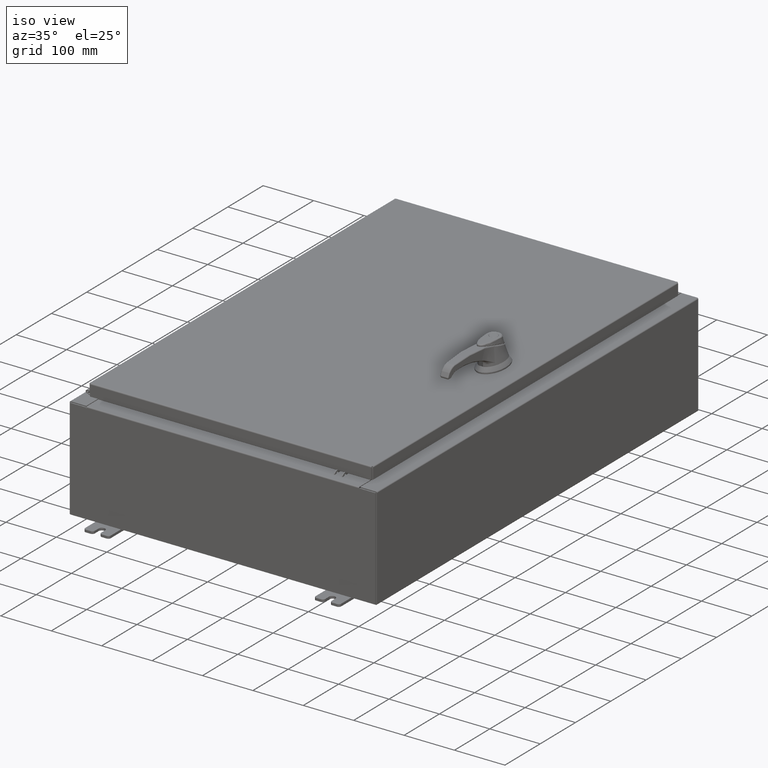
[diagram: clean part render]
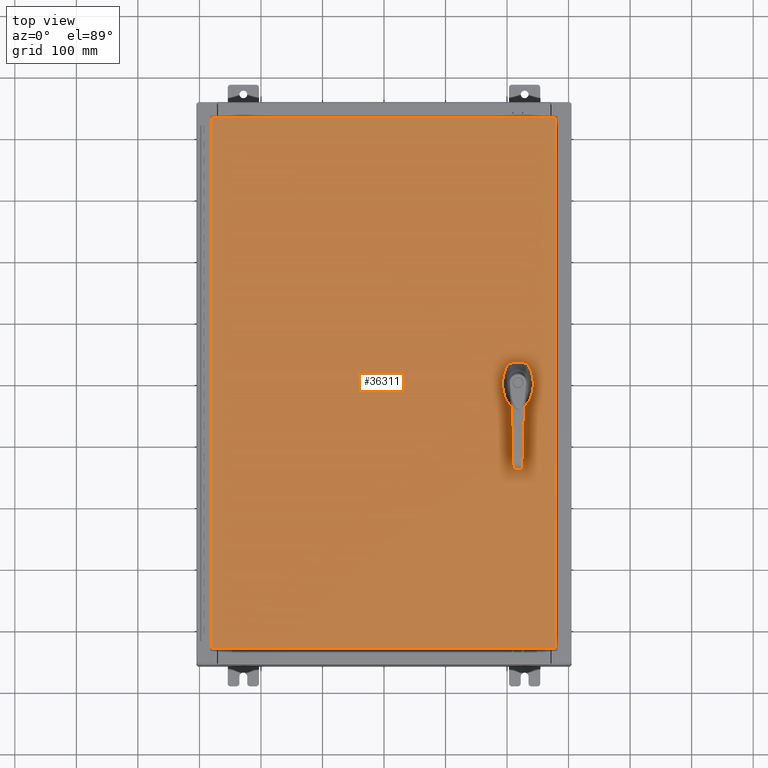
[diagram: tour spotlight — one face highlighted and labeled with its STEP entity id]
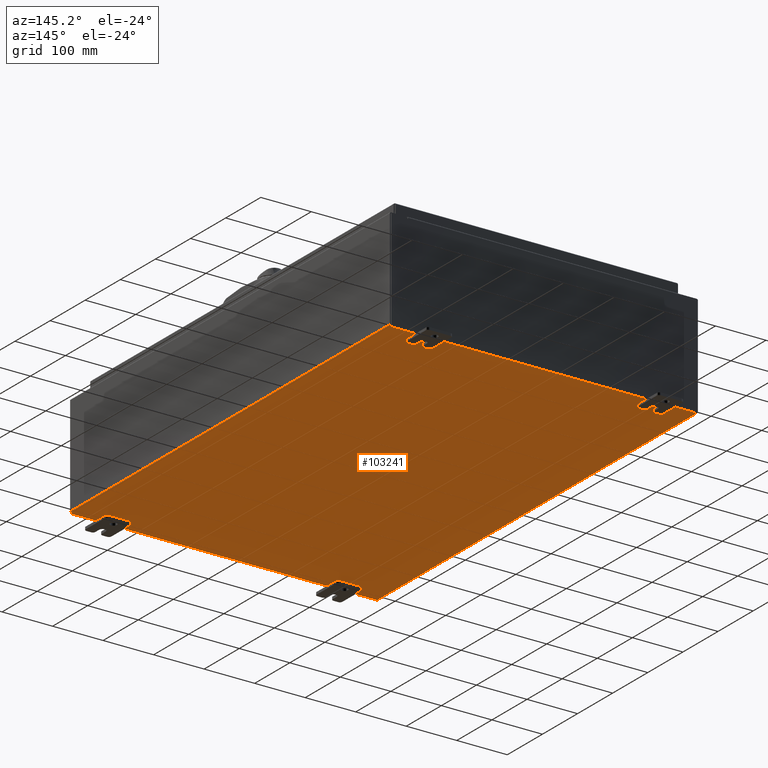
[diagram: tour spotlight — one face highlighted and labeled with its STEP entity id]
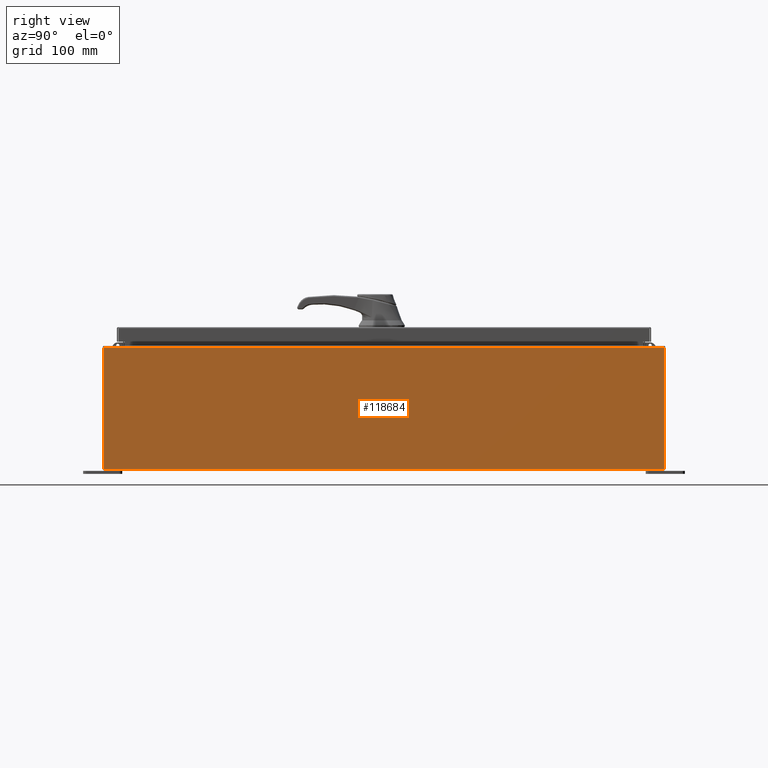
[diagram: tour spotlight — one face highlighted and labeled with its STEP entity id]
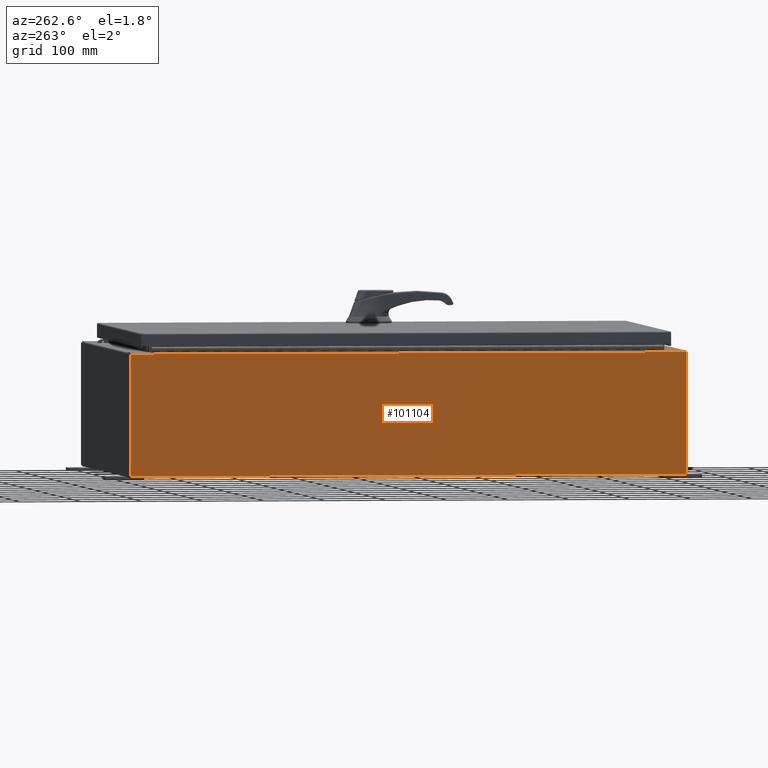
[diagram: tour spotlight — one face highlighted and labeled with its STEP entity id]
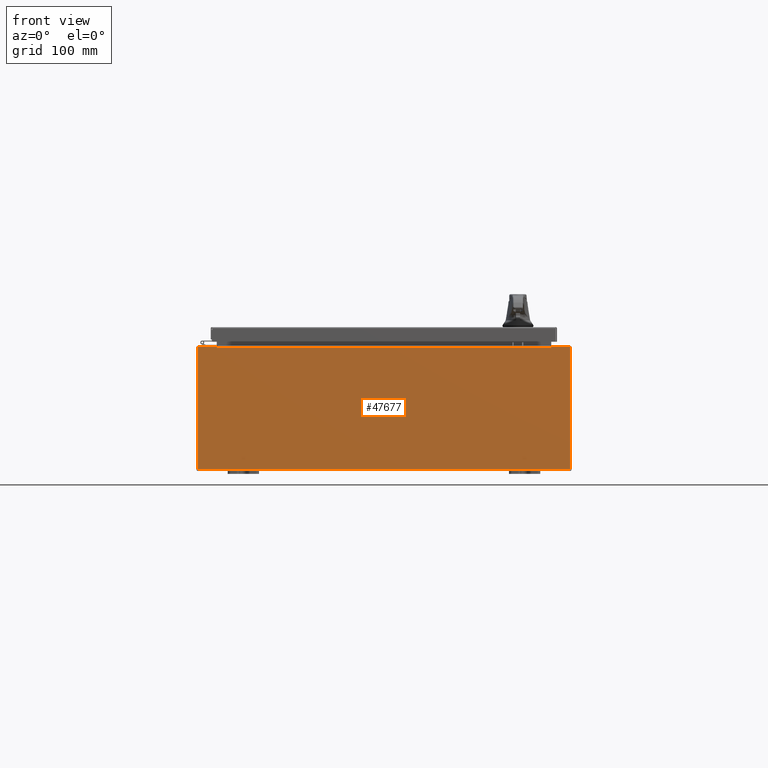
[diagram: tour spotlight — one face highlighted and labeled with its STEP entity id]
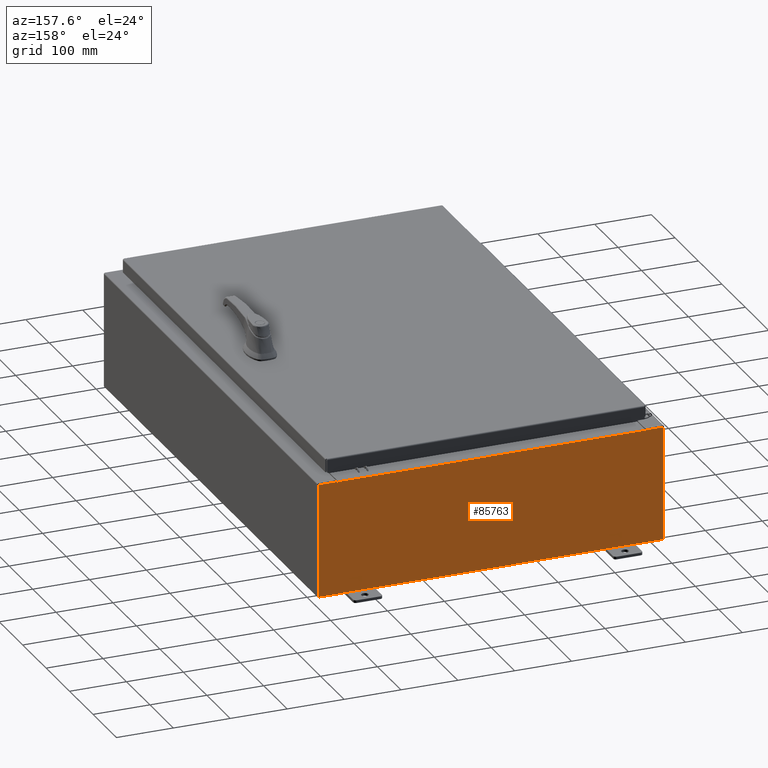
[diagram: tour spotlight — one face highlighted and labeled with its STEP entity id]
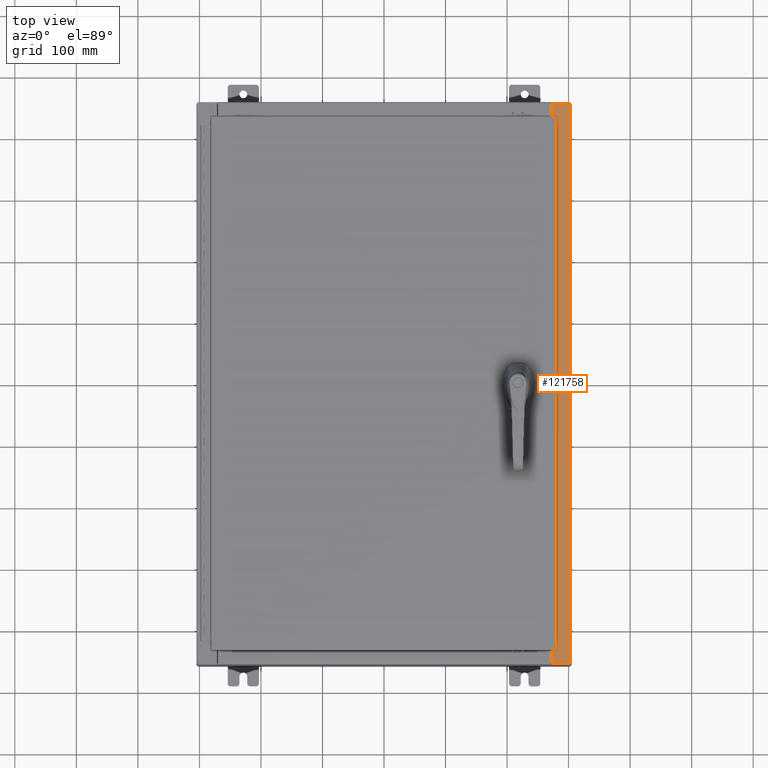
[diagram: tour spotlight — one face highlighted and labeled with its STEP entity id]
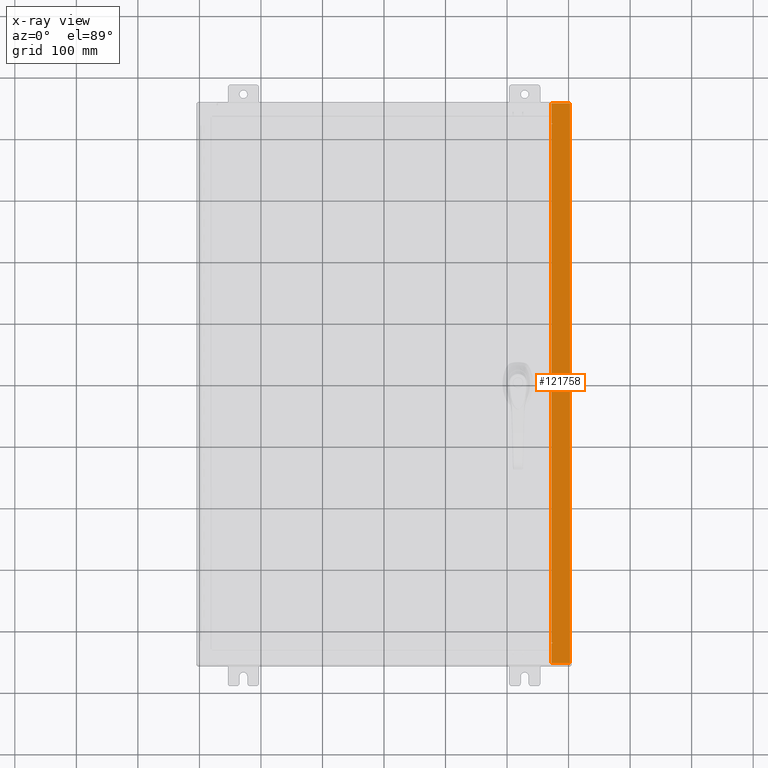
[diagram: x-ray of the same camera — body ghosted, this tour face saturated]
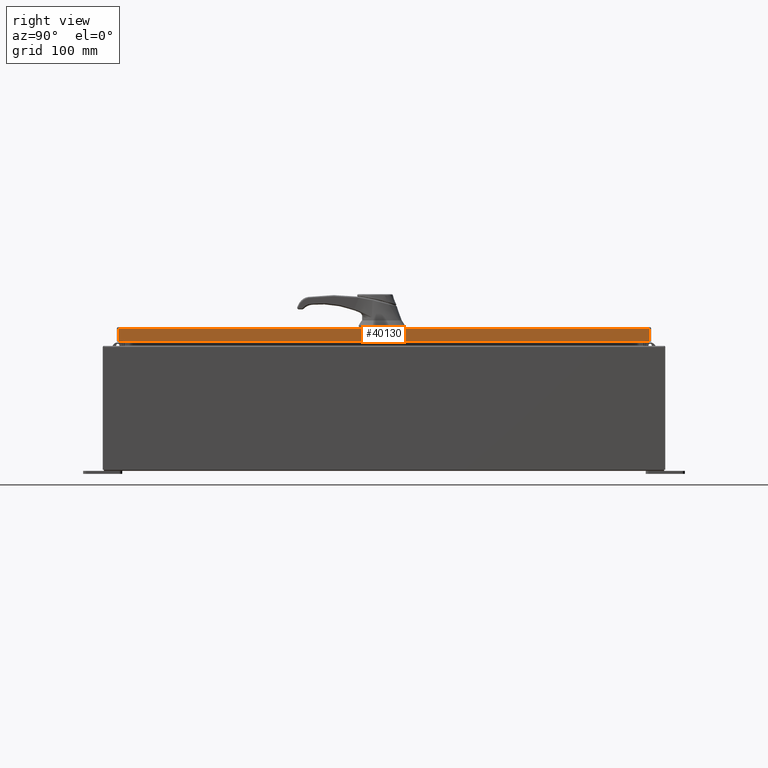
[diagram: tour spotlight — one face highlighted and labeled with its STEP entity id]
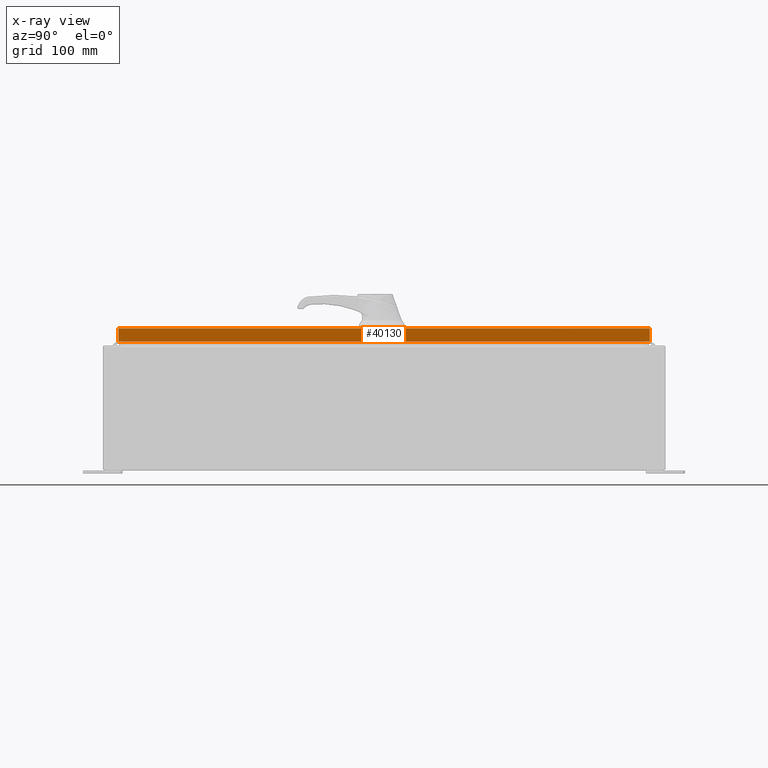
[diagram: x-ray of the same camera — body ghosted, this tour face saturated]
A machine part: a face-by-face anatomy tour. The part has 2856 B-rep faces; the first image is the clean iso view, then the 8 largest visible faces are spotlighted one at a time (largest first), each with its STEP entity span.

Face 1 — top view, entity #36311. In plain terms, the highlighted planar face has unit normal (0, 0, -1).
Definition (entity closure, byte-faithful):
#11 = EDGE_CURVE ( 'NONE', #38123, #56684, #3281, .T. ) ;
#644 = VECTOR ( 'NONE', #3723, 39.37007874015748100 ) ;
#832 = VERTEX_POINT ( 'NONE', #14706 ) ;
#2885 = DIRECTION ( 'NONE',  ( -1.000000000000000000, 0.0000000000000000000, -0.0000000000000000000 ) ) ;
#3281 = LINE ( 'NONE', #20588, #101559 ) ;
#3723 = DIRECTION ( 'NONE',  ( 0.0000000000000000000, -1.000000000000000000, 0.0000000000000000000 ) ) ;
#4145 = VERTEX_POINT ( 'NONE', #58199 ) ;
#4161 = VERTEX_POINT ( 'NONE', #87905 ) ;
#9372 = CIRCLE ( 'NONE', #34213, 0.1715000000000011500 ) ;
#10569 = ORIENTED_EDGE ( 'NONE', *, *, #49971, .F. ) ;
#10911 = VERTEX_POINT ( 'NONE', #81733 ) ;
#11384 = AXIS2_PLACEMENT_3D ( 'NONE', #21597, #88095, #31159 ) ;
#12825 = ORIENTED_EDGE ( 'NONE', *, *, #113157, .T. ) ;
#13340 = ORIENTED_EDGE ( 'NONE', *, *, #25636, .F. ) ;
#13455 = CARTESIAN_POINT ( 'NONE',  ( 8.377772629243686700, -0.4029999999999252000, 0.0000000000000000000 ) ) ;
#14706 = CARTESIAN_POINT ( 'NONE',  ( 8.377772629243686700, 0.4029999999999252000, 0.0000000000000000000 ) ) ;
#16128 = DIRECTION ( 'NONE',  ( -0.0000000000000000000, 0.0000000000000000000, 1.000000000000000000 ) ) ;
#20539 = CARTESIAN_POINT ( 'NONE',  ( 8.980999999999921700, 0.2002273707563080300, 0.0000000000000000000 ) ) ;
#20588 = CARTESIAN_POINT ( 'NONE',  ( 8.980999999999921700, 2.450686610769031800E-014, 0.0000000000000000000 ) ) ;
#21274 = ORIENTED_EDGE ( 'NONE', *, *, #40773, .T. ) ;
#21597 = CARTESIAN_POINT ( 'NONE',  ( 8.577999999999995900, 0.0000000000000000000, 0.0000000000000000000 ) ) ;
#22934 = CARTESIAN_POINT ( 'NONE',  ( 8.175000000000070000, 0.0000000000000000000, 0.0000000000000000000 ) ) ;
#23088 = DIRECTION ( 'NONE',  ( 0.0000000000000000000, -1.000000000000000000, 0.0000000000000000000 ) ) ;
#23479 = DIRECTION ( 'NONE',  ( -0.0000000000000000000, 0.0000000000000000000, 1.000000000000000000 ) ) ;
#25636 = EDGE_CURVE ( 'NONE', #98896, #100542, #79232, .T. ) ;
#26092 = LINE ( 'NONE', #22934, #644 ) ;
#28216 = EDGE_CURVE ( 'NONE', #832, #10911, #122195, .T. ) ;
#29549 = CIRCLE ( 'NONE', #67259, 0.4499999999999156900 ) ;
#29976 = ORIENTED_EDGE ( 'NONE', *, *, #83414, .T. ) ;
#30014 = EDGE_CURVE ( 'NONE', #100542, #56684, #46132, .T. ) ;
#31159 = DIRECTION ( 'NONE',  ( 1.000000000000000000, 0.0000000000000000000, 0.0000000000000000000 ) ) ;
#31253 = CARTESIAN_POINT ( 'NONE',  ( 0.0000000000000000000, 0.0000000000000000000, 0.0000000000000000000 ) ) ;
#31984 = CARTESIAN_POINT ( 'NONE',  ( -10.99030000000000000, -17.00629999999999600, -2.048885995248197400E-016 ) ) ;
#32050 = CARTESIAN_POINT ( 'NONE',  ( 8.577999999999995900, 0.0000000000000000000, 0.0000000000000000000 ) ) ;
#32793 = ORIENTED_EDGE ( 'NONE', *, *, #53768, .T. ) ;
#33978 = ORIENTED_EDGE ( 'NONE', *, *, #28216, .F. ) ;
#34213 = AXIS2_PLACEMENT_3D ( 'NONE', #73037, #16128, #82640 ) ;
#34842 = DIRECTION ( 'NONE',  ( 1.000000000000000000, -0.0000000000000000000, -0.0000000000000000000 ) ) ;
#34973 = DIRECTION ( 'NONE',  ( 2.728745808672812900E-015, -1.000000000000000000, 0.0000000000000000000 ) ) ;
#35073 = CARTESIAN_POINT ( 'NONE',  ( 10.99029999999999800, 17.00630000000000700, -2.048885995248197400E-016 ) ) ;
#36311 = ADVANCED_FACE ( 'NONE', ( #89222, #41632, #63911 ), #97773, .F. ) ;
#37641 = AXIS2_PLACEMENT_3D ( 'NONE', #39824, #106245, #49337 ) ;
#38123 = VERTEX_POINT ( 'NONE', #20539 ) ;
#39824 = CARTESIAN_POINT ( 'NONE',  ( 8.577999999999995900, -1.338000000000000100, 0.0000000000000000000 ) ) ;
#40773 = EDGE_CURVE ( 'NONE', #77423, #91901, #42486, .T. ) ;
#41572 = DIRECTION ( 'NONE',  ( 1.000000000000000000, 0.0000000000000000000, 0.0000000000000000000 ) ) ;
#41632 = FACE_OUTER_BOUND ( 'NONE', #50240, .T. ) ;
#42486 = LINE ( 'NONE', #91789, #90068 ) ;
#44697 = VECTOR ( 'NONE', #115433, 39.37007874015748100 ) ;
#44920 = VECTOR ( 'NONE', #23088, 39.37007874015748100 ) ;
#46132 = CIRCLE ( 'NONE', #111947, 0.4499999999999156900 ) ;
#48523 = AXIS2_PLACEMENT_3D ( 'NONE', #31253, #59853, #2885 ) ;
#48932 = CARTESIAN_POINT ( 'NONE',  ( 10.99029999999999600, -17.00629999999999200, -2.048885995248197400E-016 ) ) ;
#49337 = DIRECTION ( 'NONE',  ( 1.000000000000000000, 0.0000000000000000000, 0.0000000000000000000 ) ) ;
#49971 = EDGE_CURVE ( 'NONE', #10911, #100056, #26092, .T. ) ;
#50240 = EDGE_LOOP ( 'NONE', ( #21274, #29976, #12825, #32793 ) ) ;
#51189 = CARTESIAN_POINT ( 'NONE',  ( 8.577999999999995900, 0.0000000000000000000, 0.0000000000000000000 ) ) ;
#51681 = CARTESIAN_POINT ( 'NONE',  ( 0.0000000000000000000, -0.4029999999999252000, 0.0000000000000000000 ) ) ;
#51878 = LINE ( 'NONE', #81824, #96501 ) ;
#53544 = DIRECTION ( 'NONE',  ( -1.000000000000000000, 0.0000000000000000000, 0.0000000000000000000 ) ) ;
#53768 = EDGE_CURVE ( 'NONE', #106333, #77423, #86511, .T. ) ;
#53950 = VECTOR ( 'NONE', #61600, 39.37007874015748100 ) ;
#54570 = LINE ( 'NONE', #35073, #76862 ) ;
#56684 = VERTEX_POINT ( 'NONE', #92103 ) ;
#56958 = ORIENTED_EDGE ( 'NONE', *, *, #110213, .F. ) ;
#57422 = VERTEX_POINT ( 'NONE', #115596 ) ;
#58199 = CARTESIAN_POINT ( 'NONE',  ( 8.749499999999997600, -1.338000000000000100, 0.0000000000000000000 ) ) ;
#58331 = EDGE_CURVE ( 'NONE', #100056, #98896, #29549, .T. ) ;
#59853 = DIRECTION ( 'NONE',  ( 0.0000000000000000000, 0.0000000000000000000, -1.000000000000000000 ) ) ;
#60198 = LINE ( 'NONE', #48932, #44697 ) ;
#60718 = DIRECTION ( 'NONE',  ( 1.000000000000000000, 0.0000000000000000000, 0.0000000000000000000 ) ) ;
#61600 = DIRECTION ( 'NONE',  ( 1.000000000000000000, 0.0000000000000000000, 0.0000000000000000000 ) ) ;
#63911 = FACE_BOUND ( 'NONE', #75645, .T. ) ;
#67259 = AXIS2_PLACEMENT_3D ( 'NONE', #32050, #98555, #41572 ) ;
#73037 = CARTESIAN_POINT ( 'NONE',  ( 8.577999999999995900, -1.338000000000000100, 0.0000000000000000000 ) ) ;
#73295 = DIRECTION ( 'NONE',  ( -1.000000000000000000, -0.0000000000000000000, -0.0000000000000000000 ) ) ;
#75645 = EDGE_LOOP ( 'NONE', ( #76773, #114468, #13340, #81731, #10569, #33978, #100740, #56958 ) ) ;
#76773 = ORIENTED_EDGE ( 'NONE', *, *, #11, .T. ) ;
#76862 = VECTOR ( 'NONE', #73295, 39.37007874015748100 ) ;
#77423 = VERTEX_POINT ( 'NONE', #31984 ) ;
#79232 = LINE ( 'NONE', #51681, #53950 ) ;
#80012 = CARTESIAN_POINT ( 'NONE',  ( -10.99030000000000500, 17.00630000000000700, -3.483106191921935600E-015 ) ) ;
#80394 = CARTESIAN_POINT ( 'NONE',  ( 8.577999999999995900, 0.0000000000000000000, 0.0000000000000000000 ) ) ;
#81731 = ORIENTED_EDGE ( 'NONE', *, *, #58331, .F. ) ;
#81733 = CARTESIAN_POINT ( 'NONE',  ( 8.175000000000070000, 0.2002273707563079800, 0.0000000000000000000 ) ) ;
#81824 = CARTESIAN_POINT ( 'NONE',  ( 0.0000000000000000000, 0.4029999999999252000, 0.0000000000000000000 ) ) ;
#82640 = DIRECTION ( 'NONE',  ( 1.000000000000000000, 0.0000000000000000000, 0.0000000000000000000 ) ) ;
#83414 = EDGE_CURVE ( 'NONE', #91901, #100530, #60198, .T. ) ;
#83451 = EDGE_CURVE ( 'NONE', #4145, #57422, #108538, .T. ) ;
#85184 = EDGE_LOOP ( 'NONE', ( #113661, #111009 ) ) ;
#86511 = LINE ( 'NONE', #80012, #44920 ) ;
#87905 = CARTESIAN_POINT ( 'NONE',  ( 8.778227370756305000, 0.4029999999999252000, 0.0000000000000000000 ) ) ;
#88065 = CARTESIAN_POINT ( 'NONE',  ( 10.99029999999999600, -17.00629999999999200, -2.048885995248197400E-016 ) ) ;
#88095 = DIRECTION ( 'NONE',  ( -0.0000000000000000000, 0.0000000000000000000, 1.000000000000000000 ) ) ;
#89222 = FACE_BOUND ( 'NONE', #85184, .T. ) ;
#89953 = DIRECTION ( 'NONE',  ( 1.000000000000000000, 0.0000000000000000000, 0.0000000000000000000 ) ) ;
#90068 = VECTOR ( 'NONE', #34842, 39.37007874015748100 ) ;
#91274 = CARTESIAN_POINT ( 'NONE',  ( 10.99029999999999800, 17.00630000000000700, -2.048885995248197400E-016 ) ) ;
#91789 = CARTESIAN_POINT ( 'NONE',  ( -10.99030000000000000, -17.00629999999999600, -2.048885995248197400E-016 ) ) ;
#91901 = VERTEX_POINT ( 'NONE', #88065 ) ;
#92103 = CARTESIAN_POINT ( 'NONE',  ( 8.980999999999921700, -0.2002273707563079800, 0.0000000000000000000 ) ) ;
#92258 = EDGE_CURVE ( 'NONE', #57422, #4145, #9372, .T. ) ;
#96501 = VECTOR ( 'NONE', #53544, 39.37007874015748100 ) ;
#97773 = PLANE ( 'NONE',  #48523 ) ;
#98555 = DIRECTION ( 'NONE',  ( -0.0000000000000000000, 0.0000000000000000000, 1.000000000000000000 ) ) ;
#98896 = VERTEX_POINT ( 'NONE', #13455 ) ;
#100056 = VERTEX_POINT ( 'NONE', #108882 ) ;
#100530 = VERTEX_POINT ( 'NONE', #91274 ) ;
#100542 = VERTEX_POINT ( 'NONE', #119922 ) ;
#100740 = ORIENTED_EDGE ( 'NONE', *, *, #106500, .F. ) ;
#101559 = VECTOR ( 'NONE', #34973, 39.37007874015748100 ) ;
#103662 = AXIS2_PLACEMENT_3D ( 'NONE', #80394, #23479, #89953 ) ;
#104021 = CIRCLE ( 'NONE', #103662, 0.4499999999999156900 ) ;
#106245 = DIRECTION ( 'NONE',  ( -0.0000000000000000000, 0.0000000000000000000, 1.000000000000000000 ) ) ;
#106333 = VERTEX_POINT ( 'NONE', #118383 ) ;
#106500 = EDGE_CURVE ( 'NONE', #4161, #832, #51878, .T. ) ;
#108538 = CIRCLE ( 'NONE', #37641, 0.1715000000000011500 ) ;
#108882 = CARTESIAN_POINT ( 'NONE',  ( 8.175000000000070000, -0.2002273707563079800, 0.0000000000000000000 ) ) ;
#110213 = EDGE_CURVE ( 'NONE', #38123, #4161, #104021, .T. ) ;
#111009 = ORIENTED_EDGE ( 'NONE', *, *, #92258, .F. ) ;
#111947 = AXIS2_PLACEMENT_3D ( 'NONE', #51189, #117667, #60718 ) ;
#113157 = EDGE_CURVE ( 'NONE', #100530, #106333, #54570, .T. ) ;
#113661 = ORIENTED_EDGE ( 'NONE', *, *, #83451, .F. ) ;
#114468 = ORIENTED_EDGE ( 'NONE', *, *, #30014, .F. ) ;
#115433 = DIRECTION ( 'NONE',  ( 0.0000000000000000000, 1.000000000000000000, 0.0000000000000000000 ) ) ;
#115596 = CARTESIAN_POINT ( 'NONE',  ( 8.406499999999994100, -1.338000000000000100, 0.0000000000000000000 ) ) ;
#117667 = DIRECTION ( 'NONE',  ( -0.0000000000000000000, 0.0000000000000000000, 1.000000000000000000 ) ) ;
#118383 = CARTESIAN_POINT ( 'NONE',  ( -10.99030000000000500, 17.00630000000000700, -3.483106191921935600E-015 ) ) ;
#119922 = CARTESIAN_POINT ( 'NONE',  ( 8.778227370756305000, -0.4029999999999252000, 0.0000000000000000000 ) ) ;
#122195 = CIRCLE ( 'NONE', #11384, 0.4499999999999156900 ) ;

Face 2 — auxiliary view, entity #103241. In plain terms, the highlighted planar face has unit normal (0, 0, -1).
Definition (entity closure, byte-faithful):
#5524 = ORIENTED_EDGE ( 'NONE', *, *, #67366, .T. ) ;
#7276 = VECTOR ( 'NONE', #45822, 39.37007874015748100 ) ;
#10265 = LINE ( 'NONE', #112311, #7276 ) ;
#13971 = VERTEX_POINT ( 'NONE', #69997 ) ;
#14480 = EDGE_CURVE ( 'NONE', #65340, #82671, #57308, .T. ) ;
#16283 = DIRECTION ( 'NONE',  ( -1.000000000000000000, 0.0000000000000000000, -0.0000000000000000000 ) ) ;
#17196 = EDGE_CURVE ( 'NONE', #35669, #82671, #85423, .T. ) ;
#19365 = CARTESIAN_POINT ( 'NONE',  ( -11.91230000000000000, 17.92529999999999600, -0.07470000000000000300 ) ) ;
#19558 = CARTESIAN_POINT ( 'NONE',  ( 11.91230000000000000, 17.92529999999999600, -0.07469999999999738000 ) ) ;
#20341 = DIRECTION ( 'NONE',  ( -0.0000000000000000000, 1.000000000000000000, -0.0000000000000000000 ) ) ;
#26567 = EDGE_LOOP ( 'NONE', ( #58448, #75225, #122745, #5524 ) ) ;
#34982 = CARTESIAN_POINT ( 'NONE',  ( 0.0000000000000000000, 0.0000000000000000000, -0.07470000000000000300 ) ) ;
#35669 = VERTEX_POINT ( 'NONE', #60000 ) ;
#45822 = DIRECTION ( 'NONE',  ( -0.0000000000000000000, -1.000000000000000000, -8.208677865577646300E-017 ) ) ;
#54389 = VECTOR ( 'NONE', #104408, 39.37007874015748100 ) ;
#57308 = LINE ( 'NONE', #94879, #54389 ) ;
#58448 = ORIENTED_EDGE ( 'NONE', *, *, #121511, .F. ) ;
#60000 = CARTESIAN_POINT ( 'NONE',  ( -11.91230000000000000, -17.92530000000000400, -0.07469999999999994700 ) ) ;
#64718 = VECTOR ( 'NONE', #87227, 39.37007874015748100 ) ;
#65340 = VERTEX_POINT ( 'NONE', #19558 ) ;
#67366 = EDGE_CURVE ( 'NONE', #65340, #13971, #10265, .T. ) ;
#67646 = CARTESIAN_POINT ( 'NONE',  ( -11.91230000000000000, -17.92530000000000400, -0.07469999999999994700 ) ) ;
#69997 = CARTESIAN_POINT ( 'NONE',  ( 11.91229999999999100, -17.92530000000000400, -0.07470000000000000300 ) ) ;
#73208 = DIRECTION ( 'NONE',  ( 0.0000000000000000000, 0.0000000000000000000, -1.000000000000000000 ) ) ;
#75225 = ORIENTED_EDGE ( 'NONE', *, *, #17196, .T. ) ;
#77647 = CARTESIAN_POINT ( 'NONE',  ( -12.00000000000000200, -17.92530000000000400, -0.07470000000000000300 ) ) ;
#82671 = VERTEX_POINT ( 'NONE', #19365 ) ;
#85423 = LINE ( 'NONE', #67646, #88395 ) ;
#87227 = DIRECTION ( 'NONE',  ( 1.000000000000000000, 0.0000000000000000000, 0.0000000000000000000 ) ) ;
#88395 = VECTOR ( 'NONE', #20341, 39.37007874015748100 ) ;
#90033 = LINE ( 'NONE', #77647, #64718 ) ;
#91928 = PLANE ( 'NONE',  #119164 ) ;
#94879 = CARTESIAN_POINT ( 'NONE',  ( -12.00000000000000200, 17.92529999999999600, -0.07470000000000000300 ) ) ;
#103241 = ADVANCED_FACE ( 'NONE', ( #104170 ), #91928, .T. ) ;
#104170 = FACE_OUTER_BOUND ( 'NONE', #26567, .T. ) ;
#104408 = DIRECTION ( 'NONE',  ( -1.000000000000000000, -0.0000000000000000000, -0.0000000000000000000 ) ) ;
#112311 = CARTESIAN_POINT ( 'NONE',  ( 11.91230000000000000, 17.92529999999999600, -0.07469999999999738000 ) ) ;
#119164 = AXIS2_PLACEMENT_3D ( 'NONE', #34982, #73208, #16283 ) ;
#121511 = EDGE_CURVE ( 'NONE', #35669, #13971, #90033, .T. ) ;
#122745 = ORIENTED_EDGE ( 'NONE', *, *, #14480, .F. ) ;

Face 3 — right view, entity #118684. In plain terms, the highlighted planar face has unit normal (-1, 0, 0).
Definition (entity closure, byte-faithful):
#3920 = LINE ( 'NONE', #100493, #78520 ) ;
#10711 = VERTEX_POINT ( 'NONE', #47412 ) ;
#18377 = DIRECTION ( 'NONE',  ( -1.000000000000000000, 0.0000000000000000000, 3.584876173029202900E-015 ) ) ;
#26428 = DIRECTION ( 'NONE',  ( -2.185366332686126200E-031, -1.000000000000000000, -6.096072018129156600E-017 ) ) ;
#30647 = DIRECTION ( 'NONE',  ( -0.0000000000000000000, -1.000000000000000000, -0.0000000000000000000 ) ) ;
#32822 = ORIENTED_EDGE ( 'NONE', *, *, #86897, .T. ) ;
#33961 = DIRECTION ( 'NONE',  ( 3.584876173029202900E-015, 0.0000000000000000000, 1.000000000000000000 ) ) ;
#34685 = FACE_OUTER_BOUND ( 'NONE', #122193, .T. ) ;
#41187 = AXIS2_PLACEMENT_3D ( 'NONE', #52940, #18377, #84868 ) ;
#42640 = LINE ( 'NONE', #113026, #112533 ) ;
#42860 = LINE ( 'NONE', #55430, #112737 ) ;
#47412 = CARTESIAN_POINT ( 'NONE',  ( 12.00000000000000200, -17.92530000000000400, 0.01299999999999945600 ) ) ;
#51778 = VERTEX_POINT ( 'NONE', #66046 ) ;
#52940 = CARTESIAN_POINT ( 'NONE',  ( 12.00000000000000200, 0.0000000000000000000, -4.327932773236201900E-014 ) ) ;
#54498 = VERTEX_POINT ( 'NONE', #98611 ) ;
#55430 = CARTESIAN_POINT ( 'NONE',  ( 12.00000000000000200, -17.92530000000000400, 0.01299999999999984700 ) ) ;
#66046 = CARTESIAN_POINT ( 'NONE',  ( 12.00000000000003000, 17.92530000000000000, 7.837599999999992100 ) ) ;
#69516 = ORIENTED_EDGE ( 'NONE', *, *, #76729, .T. ) ;
#73958 = EDGE_CURVE ( 'NONE', #105172, #10711, #42860, .T. ) ;
#74036 = ORIENTED_EDGE ( 'NONE', *, *, #123283, .T. ) ;
#76729 = EDGE_CURVE ( 'NONE', #54498, #10711, #42640, .T. ) ;
#78520 = VECTOR ( 'NONE', #33961, 39.37007874015748100 ) ;
#84767 = DIRECTION ( 'NONE',  ( -3.584876173029202900E-015, 0.0000000000000000000, -1.000000000000000000 ) ) ;
#84868 = DIRECTION ( 'NONE',  ( 3.584876173029202900E-015, 0.0000000000000000000, 1.000000000000000000 ) ) ;
#86897 = EDGE_CURVE ( 'NONE', #105172, #51778, #3920, .T. ) ;
#91599 = PLANE ( 'NONE',  #41187 ) ;
#94541 = CARTESIAN_POINT ( 'NONE',  ( 12.00000000000000200, 17.92529999999999600, 0.01300000000000203200 ) ) ;
#97162 = CARTESIAN_POINT ( 'NONE',  ( 12.00000000000003000, 17.92530000000000000, 7.837599999999992100 ) ) ;
#98611 = CARTESIAN_POINT ( 'NONE',  ( 12.00000000000003000, -17.92530000000000000, 7.837599999999998300 ) ) ;
#100493 = CARTESIAN_POINT ( 'NONE',  ( 12.00000000000000200, 17.92529999999999600, -4.327932773236201900E-014 ) ) ;
#101898 = VECTOR ( 'NONE', #30647, 39.37007874015748100 ) ;
#104799 = LINE ( 'NONE', #97162, #101898 ) ;
#105172 = VERTEX_POINT ( 'NONE', #94541 ) ;
#112533 = VECTOR ( 'NONE', #84767, 39.37007874015748100 ) ;
#112737 = VECTOR ( 'NONE', #26428, 39.37007874015748100 ) ;
#113026 = CARTESIAN_POINT ( 'NONE',  ( 12.00000000000000200, -17.92530000000000400, -4.327932773236201900E-014 ) ) ;
#118684 = ADVANCED_FACE ( 'NONE', ( #34685 ), #91599, .F. ) ;
#120211 = ORIENTED_EDGE ( 'NONE', *, *, #73958, .F. ) ;
#122193 = EDGE_LOOP ( 'NONE', ( #74036, #69516, #120211, #32822 ) ) ;
#123283 = EDGE_CURVE ( 'NONE', #51778, #54498, #104799, .T. ) ;

Face 4 — auxiliary view, entity #101104. In plain terms, the highlighted planar face has unit normal (1, 0, 0).
Definition (entity closure, byte-faithful):
#2319 = ORIENTED_EDGE ( 'NONE', *, *, #75981, .T. ) ;
#6587 = DIRECTION ( 'NONE',  ( 1.000000000000000000, 0.0000000000000000000, 3.584876173029202900E-015 ) ) ;
#8389 = LINE ( 'NONE', #70482, #55969 ) ;
#15867 = VERTEX_POINT ( 'NONE', #50253 ) ;
#24661 = EDGE_CURVE ( 'NONE', #87831, #89988, #119510, .T. ) ;
#32718 = DIRECTION ( 'NONE',  ( -0.0000000000000000000, 1.000000000000000000, -0.0000000000000000000 ) ) ;
#43709 = VECTOR ( 'NONE', #44078, 39.37007874015748100 ) ;
#43818 = LINE ( 'NONE', #49697, #91405 ) ;
#44078 = DIRECTION ( 'NONE',  ( 0.0000000000000000000, 1.000000000000000000, 0.0000000000000000000 ) ) ;
#44622 = CARTESIAN_POINT ( 'NONE',  ( -12.00000000000000200, 17.92529999999999600, 0.01299999999999983600 ) ) ;
#47861 = DIRECTION ( 'NONE',  ( 3.584876173029202900E-015, 0.0000000000000000000, -1.000000000000000000 ) ) ;
#49697 = CARTESIAN_POINT ( 'NONE',  ( -12.00000000000000200, -17.92530000000000400, -4.327932773236201900E-014 ) ) ;
#50253 = CARTESIAN_POINT ( 'NONE',  ( -12.00000000000000200, -17.92530000000000400, 0.01299999999999984700 ) ) ;
#50650 = EDGE_CURVE ( 'NONE', #15867, #87831, #43818, .T. ) ;
#51996 = ORIENTED_EDGE ( 'NONE', *, *, #24661, .T. ) ;
#54311 = ORIENTED_EDGE ( 'NONE', *, *, #113517, .F. ) ;
#55969 = VECTOR ( 'NONE', #32718, 39.37007874015748100 ) ;
#56083 = LINE ( 'NONE', #85318, #109635 ) ;
#63532 = CARTESIAN_POINT ( 'NONE',  ( -12.00000000000000200, 0.0000000000000000000, -4.327932773236201900E-014 ) ) ;
#70482 = CARTESIAN_POINT ( 'NONE',  ( -12.00000000000000200, 17.92529999999999600, 0.01299999999999984700 ) ) ;
#73121 = DIRECTION ( 'NONE',  ( 3.584876173029202900E-015, 0.0000000000000000000, -1.000000000000000000 ) ) ;
#73713 = AXIS2_PLACEMENT_3D ( 'NONE', #63532, #6587, #73121 ) ;
#75939 = ORIENTED_EDGE ( 'NONE', *, *, #50650, .T. ) ;
#75981 = EDGE_CURVE ( 'NONE', #89988, #91071, #56083, .T. ) ;
#85318 = CARTESIAN_POINT ( 'NONE',  ( -12.00000000000000200, 17.92529999999999600, -4.327932773236201900E-014 ) ) ;
#86658 = FACE_OUTER_BOUND ( 'NONE', #89051, .T. ) ;
#87831 = VERTEX_POINT ( 'NONE', #111919 ) ;
#88170 = CARTESIAN_POINT ( 'NONE',  ( -12.00000000000003000, 17.92529999999999600, 7.837599999999999200 ) ) ;
#89051 = EDGE_LOOP ( 'NONE', ( #51996, #2319, #54311, #75939 ) ) ;
#89988 = VERTEX_POINT ( 'NONE', #88170 ) ;
#91071 = VERTEX_POINT ( 'NONE', #44622 ) ;
#91405 = VECTOR ( 'NONE', #106599, 39.37007874015748100 ) ;
#101104 = ADVANCED_FACE ( 'NONE', ( #86658 ), #101416, .F. ) ;
#101416 = PLANE ( 'NONE',  #73713 ) ;
#106599 = DIRECTION ( 'NONE',  ( -3.584876173029202900E-015, 0.0000000000000000000, 1.000000000000000000 ) ) ;
#109635 = VECTOR ( 'NONE', #47861, 39.37007874015748100 ) ;
#110548 = CARTESIAN_POINT ( 'NONE',  ( -12.00000000000003000, -17.92530000000000400, 7.837599999999999200 ) ) ;
#111919 = CARTESIAN_POINT ( 'NONE',  ( -12.00000000000003000, -17.92530000000000400, 7.837599999999999200 ) ) ;
#113517 = EDGE_CURVE ( 'NONE', #15867, #91071, #8389, .T. ) ;
#119510 = LINE ( 'NONE', #110548, #43709 ) ;

Face 5 — front view, entity #47677. In plain terms, the highlighted planar face has unit normal (-0, 1, -0).
Definition (entity closure, byte-faithful):
#331 = DIRECTION ( 'NONE',  ( 1.000000000000000000, 0.0000000000000000000, 0.0000000000000000000 ) ) ;
#409 = ORIENTED_EDGE ( 'NONE', *, *, #71818, .F. ) ;
#911 = EDGE_CURVE ( 'NONE', #13879, #21802, #41899, .T. ) ;
#1077 = DIRECTION ( 'NONE',  ( 0.0000000000000000000, 0.0000000000000000000, -1.000000000000000000 ) ) ;
#1929 = ORIENTED_EDGE ( 'NONE', *, *, #44945, .F. ) ;
#4255 = LINE ( 'NONE', #114311, #99537 ) ;
#4499 = DIRECTION ( 'NONE',  ( 0.0000000000000000000, 0.0000000000000000000, -1.000000000000000000 ) ) ;
#8066 = VERTEX_POINT ( 'NONE', #67496 ) ;
#9309 = VERTEX_POINT ( 'NONE', #76175 ) ;
#10297 = DIRECTION ( 'NONE',  ( 1.000000000000000000, 0.0000000000000000000, 0.0000000000000000000 ) ) ;
#13462 = DIRECTION ( 'NONE',  ( 0.0000000000000000000, 0.0000000000000000000, 1.000000000000000000 ) ) ;
#13879 = VERTEX_POINT ( 'NONE', #65898 ) ;
#14120 = CARTESIAN_POINT ( 'NONE',  ( 11.92530000000000000, 0.0000000000000000000, 3.925299999999999600 ) ) ;
#16380 = CARTESIAN_POINT ( 'NONE',  ( 11.92530000000000000, 0.0000000000000000000, 3.925299999999999600 ) ) ;
#18033 = CIRCLE ( 'NONE', #46187, 0.01867499999999949400 ) ;
#18531 = CARTESIAN_POINT ( 'NONE',  ( 10.65587500000000200, 0.0000000000000000000, 3.874949999999999700 ) ) ;
#20310 = CARTESIAN_POINT ( 'NONE',  ( -10.63720000000000400, -0.0000000000000000000, 0.0000000000000000000 ) ) ;
#21732 = CARTESIAN_POINT ( 'NONE',  ( -10.65587500000000200, 0.0000000000000000000, 3.874949999999999700 ) ) ;
#21802 = VERTEX_POINT ( 'NONE', #115096 ) ;
#22885 = EDGE_LOOP ( 'NONE', ( #75872, #55404, #72824, #117114, #1929, #67897, #409, #110332, #90213, #116075, #39693, #26876 ) ) ;
#22975 = VECTOR ( 'NONE', #10297, 39.37007874015748100 ) ;
#24706 = CARTESIAN_POINT ( 'NONE',  ( 0.0000000000000000000, 0.0000000000000000000, 0.0000000000000000000 ) ) ;
#25572 = EDGE_CURVE ( 'NONE', #55880, #47183, #59854, .T. ) ;
#26876 = ORIENTED_EDGE ( 'NONE', *, *, #107810, .T. ) ;
#28074 = LINE ( 'NONE', #14120, #50315 ) ;
#28103 = DIRECTION ( 'NONE',  ( 0.0000000000000000000, 0.0000000000000000000, -1.000000000000000000 ) ) ;
#31295 = DIRECTION ( 'NONE',  ( 0.0000000000000000000, 0.0000000000000000000, -1.000000000000000000 ) ) ;
#32195 = CARTESIAN_POINT ( 'NONE',  ( -10.67455000000000200, -0.0000000000000000000, 0.0000000000000000000 ) ) ;
#34241 = DIRECTION ( 'NONE',  ( 0.0000000000000000000, -0.0000000000000000000, -1.000000000000000000 ) ) ;
#34641 = VECTOR ( 'NONE', #13462, 39.37007874015748100 ) ;
#35644 = AXIS2_PLACEMENT_3D ( 'NONE', #24706, #91172, #34241 ) ;
#35716 = VECTOR ( 'NONE', #44089, 39.37007874015748100 ) ;
#38454 = CARTESIAN_POINT ( 'NONE',  ( -10.63720000000000400, 1.024442997624098700E-016, 3.912299999999999700 ) ) ;
#38601 = CARTESIAN_POINT ( 'NONE',  ( -11.92530000000000000, 0.0000000000000000000, 3.925299999999999600 ) ) ;
#39188 = CARTESIAN_POINT ( 'NONE',  ( -10.67455000000000200, 0.0000000000000000000, 3.874949999999999700 ) ) ;
#39564 = VERTEX_POINT ( 'NONE', #38454 ) ;
#39693 = ORIENTED_EDGE ( 'NONE', *, *, #60406, .T. ) ;
#41899 = LINE ( 'NONE', #78575, #120707 ) ;
#44089 = DIRECTION ( 'NONE',  ( -4.340572780400004900E-014, 0.0000000000000000000, -1.000000000000000000 ) ) ;
#44945 = EDGE_CURVE ( 'NONE', #89161, #96696, #98465, .T. ) ;
#46187 = AXIS2_PLACEMENT_3D ( 'NONE', #21732, #88237, #31295 ) ;
#46737 = LINE ( 'NONE', #103051, #122546 ) ;
#46848 = EDGE_CURVE ( 'NONE', #39564, #8066, #108539, .T. ) ;
#46899 = DIRECTION ( 'NONE',  ( 0.0000000000000000000, 0.0000000000000000000, 1.000000000000000000 ) ) ;
#47183 = VERTEX_POINT ( 'NONE', #93764 ) ;
#47677 = ADVANCED_FACE ( 'NONE', ( #59495 ), #81628, .F. ) ;
#47836 = VECTOR ( 'NONE', #87654, 39.37007874015748100 ) ;
#50315 = VECTOR ( 'NONE', #4499, 39.37007874015748100 ) ;
#50817 = LINE ( 'NONE', #78063, #47836 ) ;
#55404 = ORIENTED_EDGE ( 'NONE', *, *, #65039, .F. ) ;
#55880 = VERTEX_POINT ( 'NONE', #39188 ) ;
#59495 = FACE_OUTER_BOUND ( 'NONE', #22885, .T. ) ;
#59854 = LINE ( 'NONE', #32195, #34641 ) ;
#60406 = EDGE_CURVE ( 'NONE', #21802, #76861, #46737, .T. ) ;
#60908 = LINE ( 'NONE', #91461, #35716 ) ;
#65039 = EDGE_CURVE ( 'NONE', #8066, #55880, #18033, .T. ) ;
#65898 = CARTESIAN_POINT ( 'NONE',  ( 11.92530000000000000, 0.0000000000000000000, -3.925299999999999600 ) ) ;
#67496 = CARTESIAN_POINT ( 'NONE',  ( -10.63720000000000400, -0.0000000000000000000, 3.874949999999999700 ) ) ;
#67800 = EDGE_CURVE ( 'NONE', #110487, #13879, #28074, .T. ) ;
#67897 = ORIENTED_EDGE ( 'NONE', *, *, #87171, .F. ) ;
#71818 = EDGE_CURVE ( 'NONE', #9309, #104821, #60908, .T. ) ;
#72114 = CARTESIAN_POINT ( 'NONE',  ( 10.67455000000000200, 0.0000000000000000000, 3.874949999999999700 ) ) ;
#72824 = ORIENTED_EDGE ( 'NONE', *, *, #46848, .F. ) ;
#72886 = EDGE_CURVE ( 'NONE', #9309, #110487, #4255, .T. ) ;
#73942 = CARTESIAN_POINT ( 'NONE',  ( 10.63720000000000400, 0.0000000000000000000, 3.912299999999999700 ) ) ;
#75872 = ORIENTED_EDGE ( 'NONE', *, *, #25572, .F. ) ;
#76108 = VECTOR ( 'NONE', #46899, 39.37007874015748100 ) ;
#76175 = CARTESIAN_POINT ( 'NONE',  ( 10.67455000000000200, 0.0000000000000000000, 3.925299999999999600 ) ) ;
#76805 = CARTESIAN_POINT ( 'NONE',  ( -10.63720000000000400, 1.024442997624098700E-016, 3.912299999999999700 ) ) ;
#76861 = VERTEX_POINT ( 'NONE', #38601 ) ;
#78063 = CARTESIAN_POINT ( 'NONE',  ( -11.92530000000000000, 0.0000000000000000000, 3.925299999999999600 ) ) ;
#78575 = CARTESIAN_POINT ( 'NONE',  ( -11.92530000000000000, 0.0000000000000000000, -3.925299999999999600 ) ) ;
#79161 = EDGE_CURVE ( 'NONE', #39564, #96696, #121090, .T. ) ;
#81628 = PLANE ( 'NONE',  #35644 ) ;
#83010 = CIRCLE ( 'NONE', #118246, 0.01867499999999949400 ) ;
#85024 = DIRECTION ( 'NONE',  ( -0.0000000000000000000, 1.000000000000000000, -0.0000000000000000000 ) ) ;
#87171 = EDGE_CURVE ( 'NONE', #104821, #89161, #83010, .T. ) ;
#87654 = DIRECTION ( 'NONE',  ( 1.000000000000000000, 0.0000000000000000000, 0.0000000000000000000 ) ) ;
#88237 = DIRECTION ( 'NONE',  ( -0.0000000000000000000, 1.000000000000000000, -0.0000000000000000000 ) ) ;
#89161 = VERTEX_POINT ( 'NONE', #110271 ) ;
#90213 = ORIENTED_EDGE ( 'NONE', *, *, #67800, .T. ) ;
#91172 = DIRECTION ( 'NONE',  ( 0.0000000000000000000, -1.000000000000000000, 0.0000000000000000000 ) ) ;
#91461 = CARTESIAN_POINT ( 'NONE',  ( 10.67454999999983300, -0.0000000000000000000, -4.633366117301815000E-013 ) ) ;
#93091 = DIRECTION ( 'NONE',  ( -0.0000000000000000000, -0.0000000000000000000, 1.000000000000000000 ) ) ;
#93764 = CARTESIAN_POINT ( 'NONE',  ( -10.67455000000000200, 0.0000000000000000000, 3.925299999999999600 ) ) ;
#96696 = VERTEX_POINT ( 'NONE', #73942 ) ;
#96766 = CARTESIAN_POINT ( 'NONE',  ( 10.63720000000000400, 0.0000000000000000000, 0.0000000000000000000 ) ) ;
#98465 = LINE ( 'NONE', #96766, #76108 ) ;
#99537 = VECTOR ( 'NONE', #331, 39.37007874015748100 ) ;
#100208 = DIRECTION ( 'NONE',  ( -1.000000000000000000, -0.0000000000000000000, -0.0000000000000000000 ) ) ;
#103051 = CARTESIAN_POINT ( 'NONE',  ( -11.92530000000000000, 0.0000000000000000000, 3.925299999999999600 ) ) ;
#104821 = VERTEX_POINT ( 'NONE', #72114 ) ;
#107810 = EDGE_CURVE ( 'NONE', #76861, #47183, #50817, .T. ) ;
#108539 = LINE ( 'NONE', #20310, #111555 ) ;
#110271 = CARTESIAN_POINT ( 'NONE',  ( 10.63720000000000400, 0.0000000000000000000, 3.874949999999999700 ) ) ;
#110332 = ORIENTED_EDGE ( 'NONE', *, *, #72886, .T. ) ;
#110487 = VERTEX_POINT ( 'NONE', #16380 ) ;
#111555 = VECTOR ( 'NONE', #1077, 39.37007874015748100 ) ;
#114311 = CARTESIAN_POINT ( 'NONE',  ( -11.92530000000000000, 0.0000000000000000000, 3.925299999999999600 ) ) ;
#115096 = CARTESIAN_POINT ( 'NONE',  ( -11.92530000000000000, 0.0000000000000000000, -3.925299999999999600 ) ) ;
#116075 = ORIENTED_EDGE ( 'NONE', *, *, #911, .T. ) ;
#117114 = ORIENTED_EDGE ( 'NONE', *, *, #79161, .T. ) ;
#118246 = AXIS2_PLACEMENT_3D ( 'NONE', #18531, #85024, #28103 ) ;
#120707 = VECTOR ( 'NONE', #100208, 39.37007874015748100 ) ;
#121090 = LINE ( 'NONE', #76805, #22975 ) ;
#122546 = VECTOR ( 'NONE', #93091, 39.37007874015748100 ) ;

Face 6 — auxiliary view, entity #85763. In plain terms, the highlighted planar face has unit normal (0, -1, 0).
Definition (entity closure, byte-faithful):
#1282 = DIRECTION ( 'NONE',  ( -0.0000000000000000000, -0.0000000000000000000, 1.000000000000000000 ) ) ;
#2526 = VECTOR ( 'NONE', #1282, 39.37007874015748100 ) ;
#4824 = DIRECTION ( 'NONE',  ( 0.0000000000000000000, 0.0000000000000000000, 1.000000000000000000 ) ) ;
#7113 = CARTESIAN_POINT ( 'NONE',  ( 10.63720000000000400, 0.0000000000000000000, 3.874949999999999700 ) ) ;
#12083 = EDGE_CURVE ( 'NONE', #111299, #50084, #103753, .T. ) ;
#13650 = CARTESIAN_POINT ( 'NONE',  ( 10.65587500000000200, 0.0000000000000000000, 3.874949999999999700 ) ) ;
#14440 = CARTESIAN_POINT ( 'NONE',  ( 10.63720000000000400, 0.0000000000000000000, 0.0000000000000000000 ) ) ;
#14592 = CARTESIAN_POINT ( 'NONE',  ( -11.92530000000000000, 0.0000000000000000000, 3.925299999999999600 ) ) ;
#14664 = ORIENTED_EDGE ( 'NONE', *, *, #33928, .T. ) ;
#16552 = VECTOR ( 'NONE', #32565, 39.37007874015748100 ) ;
#18808 = LINE ( 'NONE', #38021, #91677 ) ;
#19350 = VERTEX_POINT ( 'NONE', #22261 ) ;
#19373 = ORIENTED_EDGE ( 'NONE', *, *, #12083, .T. ) ;
#20114 = CARTESIAN_POINT ( 'NONE',  ( -10.63720000000000400, -0.0000000000000000000, 0.0000000000000000000 ) ) ;
#20187 = VERTEX_POINT ( 'NONE', #91902 ) ;
#21994 = FACE_OUTER_BOUND ( 'NONE', #64948, .T. ) ;
#22261 = CARTESIAN_POINT ( 'NONE',  ( 11.92530000000000000, 0.0000000000000000000, 3.925299999999999600 ) ) ;
#23212 = DIRECTION ( 'NONE',  ( 0.0000000000000000000, 0.0000000000000000000, -1.000000000000000000 ) ) ;
#26165 = ORIENTED_EDGE ( 'NONE', *, *, #112798, .T. ) ;
#27475 = EDGE_CURVE ( 'NONE', #20187, #116455, #114660, .T. ) ;
#30069 = CARTESIAN_POINT ( 'NONE',  ( 10.67454999999983300, -0.0000000000000000000, -4.633366117301815000E-013 ) ) ;
#32414 = ORIENTED_EDGE ( 'NONE', *, *, #103562, .F. ) ;
#32565 = DIRECTION ( 'NONE',  ( 0.0000000000000000000, 0.0000000000000000000, 1.000000000000000000 ) ) ;
#33692 = VERTEX_POINT ( 'NONE', #90594 ) ;
#33928 = EDGE_CURVE ( 'NONE', #54090, #111299, #63376, .T. ) ;
#34648 = CARTESIAN_POINT ( 'NONE',  ( -10.63720000000000400, 1.024442997624098700E-016, 3.912299999999999700 ) ) ;
#38021 = CARTESIAN_POINT ( 'NONE',  ( -11.92530000000000000, 0.0000000000000000000, 3.925299999999999600 ) ) ;
#38138 = DIRECTION ( 'NONE',  ( 0.0000000000000000000, -1.000000000000000000, 0.0000000000000000000 ) ) ;
#41897 = CARTESIAN_POINT ( 'NONE',  ( 11.92530000000000000, 0.0000000000000000000, 3.925299999999999600 ) ) ;
#42729 = ORIENTED_EDGE ( 'NONE', *, *, #86361, .F. ) ;
#46781 = CARTESIAN_POINT ( 'NONE',  ( -10.67455000000000200, 0.0000000000000000000, 3.925299999999999600 ) ) ;
#47152 = VECTOR ( 'NONE', #89694, 39.37007874015748100 ) ;
#47730 = EDGE_CURVE ( 'NONE', #110870, #109420, #107085, .T. ) ;
#48171 = DIRECTION ( 'NONE',  ( -0.0000000000000000000, 1.000000000000000000, -0.0000000000000000000 ) ) ;
#50084 = VERTEX_POINT ( 'NONE', #14592 ) ;
#51027 = EDGE_CURVE ( 'NONE', #66697, #33692, #115101, .T. ) ;
#53331 = ORIENTED_EDGE ( 'NONE', *, *, #47730, .T. ) ;
#53858 = CARTESIAN_POINT ( 'NONE',  ( 10.67455000000000200, 0.0000000000000000000, 3.925299999999999600 ) ) ;
#54090 = VERTEX_POINT ( 'NONE', #122324 ) ;
#54828 = CARTESIAN_POINT ( 'NONE',  ( -11.92530000000000000, 0.0000000000000000000, -3.925299999999999600 ) ) ;
#54829 = ORIENTED_EDGE ( 'NONE', *, *, #97295, .T. ) ;
#57610 = CARTESIAN_POINT ( 'NONE',  ( -11.92530000000000000, 0.0000000000000000000, 3.925299999999999600 ) ) ;
#58007 = DIRECTION ( 'NONE',  ( 1.000000000000000000, 0.0000000000000000000, 0.0000000000000000000 ) ) ;
#59002 = VECTOR ( 'NONE', #86601, 39.37007874015748100 ) ;
#61551 = AXIS2_PLACEMENT_3D ( 'NONE', #13650, #80139, #23212 ) ;
#63376 = LINE ( 'NONE', #54828, #111005 ) ;
#64308 = EDGE_CURVE ( 'NONE', #66697, #19350, #71664, .T. ) ;
#64948 = EDGE_LOOP ( 'NONE', ( #96134, #32414, #42729, #53331, #89320, #112615, #116865, #68622, #26165, #14664, #19373, #54829 ) ) ;
#65681 = VECTOR ( 'NONE', #58007, 39.37007874015748100 ) ;
#65698 = VERTEX_POINT ( 'NONE', #113757 ) ;
#65810 = AXIS2_PLACEMENT_3D ( 'NONE', #105109, #48171, #114692 ) ;
#66358 = CARTESIAN_POINT ( 'NONE',  ( 0.0000000000000000000, 0.0000000000000000000, 0.0000000000000000000 ) ) ;
#66697 = VERTEX_POINT ( 'NONE', #53858 ) ;
#68622 = ORIENTED_EDGE ( 'NONE', *, *, #64308, .T. ) ;
#71483 = CARTESIAN_POINT ( 'NONE',  ( -10.63720000000000400, 1.024442997624098700E-016, 3.912299999999999700 ) ) ;
#71664 = LINE ( 'NONE', #57610, #65681 ) ;
#74435 = AXIS2_PLACEMENT_3D ( 'NONE', #66358, #38138, #104596 ) ;
#75952 = PLANE ( 'NONE',  #74435 ) ;
#78627 = LINE ( 'NONE', #14440, #123210 ) ;
#80139 = DIRECTION ( 'NONE',  ( -0.0000000000000000000, 1.000000000000000000, -0.0000000000000000000 ) ) ;
#83136 = DIRECTION ( 'NONE',  ( -1.000000000000000000, -0.0000000000000000000, -0.0000000000000000000 ) ) ;
#83372 = CIRCLE ( 'NONE', #65810, 0.01867499999999949400 ) ;
#84407 = LINE ( 'NONE', #20114, #59002 ) ;
#85763 = ADVANCED_FACE ( 'NONE', ( #21994 ), #75952, .F. ) ;
#86361 = EDGE_CURVE ( 'NONE', #110870, #65698, #84407, .T. ) ;
#86601 = DIRECTION ( 'NONE',  ( 0.0000000000000000000, 0.0000000000000000000, -1.000000000000000000 ) ) ;
#87000 = DIRECTION ( 'NONE',  ( -4.340572780400004900E-014, 0.0000000000000000000, -1.000000000000000000 ) ) ;
#87670 = CARTESIAN_POINT ( 'NONE',  ( 10.63720000000000400, 0.0000000000000000000, 3.912299999999999700 ) ) ;
#89320 = ORIENTED_EDGE ( 'NONE', *, *, #111148, .F. ) ;
#89694 = DIRECTION ( 'NONE',  ( 0.0000000000000000000, 0.0000000000000000000, -1.000000000000000000 ) ) ;
#89843 = VECTOR ( 'NONE', #87000, 39.37007874015748100 ) ;
#90594 = CARTESIAN_POINT ( 'NONE',  ( 10.67455000000000200, 0.0000000000000000000, 3.874949999999999700 ) ) ;
#91604 = DIRECTION ( 'NONE',  ( 1.000000000000000000, 0.0000000000000000000, 0.0000000000000000000 ) ) ;
#91677 = VECTOR ( 'NONE', #104479, 39.37007874015748100 ) ;
#91902 = CARTESIAN_POINT ( 'NONE',  ( -10.67455000000000200, 0.0000000000000000000, 3.874949999999999700 ) ) ;
#92137 = CARTESIAN_POINT ( 'NONE',  ( -11.92530000000000000, 0.0000000000000000000, -3.925299999999999600 ) ) ;
#96134 = ORIENTED_EDGE ( 'NONE', *, *, #27475, .F. ) ;
#97295 = EDGE_CURVE ( 'NONE', #50084, #116455, #18808, .T. ) ;
#97761 = LINE ( 'NONE', #41897, #47152 ) ;
#99080 = CARTESIAN_POINT ( 'NONE',  ( -10.67455000000000200, -0.0000000000000000000, 0.0000000000000000000 ) ) ;
#103562 = EDGE_CURVE ( 'NONE', #65698, #20187, #83372, .T. ) ;
#103753 = LINE ( 'NONE', #115237, #2526 ) ;
#104152 = VECTOR ( 'NONE', #91604, 39.37007874015748100 ) ;
#104479 = DIRECTION ( 'NONE',  ( 1.000000000000000000, 0.0000000000000000000, 0.0000000000000000000 ) ) ;
#104596 = DIRECTION ( 'NONE',  ( 0.0000000000000000000, -0.0000000000000000000, -1.000000000000000000 ) ) ;
#105109 = CARTESIAN_POINT ( 'NONE',  ( -10.65587500000000200, 0.0000000000000000000, 3.874949999999999700 ) ) ;
#105700 = VERTEX_POINT ( 'NONE', #7113 ) ;
#107085 = LINE ( 'NONE', #34648, #104152 ) ;
#109420 = VERTEX_POINT ( 'NONE', #87670 ) ;
#110870 = VERTEX_POINT ( 'NONE', #71483 ) ;
#111005 = VECTOR ( 'NONE', #83136, 39.37007874015748100 ) ;
#111148 = EDGE_CURVE ( 'NONE', #105700, #109420, #78627, .T. ) ;
#111299 = VERTEX_POINT ( 'NONE', #92137 ) ;
#112615 = ORIENTED_EDGE ( 'NONE', *, *, #112780, .F. ) ;
#112780 = EDGE_CURVE ( 'NONE', #33692, #105700, #122987, .T. ) ;
#112798 = EDGE_CURVE ( 'NONE', #19350, #54090, #97761, .T. ) ;
#113757 = CARTESIAN_POINT ( 'NONE',  ( -10.63720000000000400, -0.0000000000000000000, 3.874949999999999700 ) ) ;
#114660 = LINE ( 'NONE', #99080, #16552 ) ;
#114692 = DIRECTION ( 'NONE',  ( 0.0000000000000000000, 0.0000000000000000000, -1.000000000000000000 ) ) ;
#115101 = LINE ( 'NONE', #30069, #89843 ) ;
#115237 = CARTESIAN_POINT ( 'NONE',  ( -11.92530000000000000, 0.0000000000000000000, 3.925299999999999600 ) ) ;
#116455 = VERTEX_POINT ( 'NONE', #46781 ) ;
#116865 = ORIENTED_EDGE ( 'NONE', *, *, #51027, .F. ) ;
#122324 = CARTESIAN_POINT ( 'NONE',  ( 11.92530000000000000, 0.0000000000000000000, -3.925299999999999600 ) ) ;
#122987 = CIRCLE ( 'NONE', #61551, 0.01867499999999949400 ) ;
#123210 = VECTOR ( 'NONE', #4824, 39.37007874015748100 ) ;

Face 7 — top view, entity #121758. An x-ray twin of the same camera follows (body ghosted, this face saturated) — the face is partly hidden behind the body. In plain terms, the highlighted planar face has unit normal (-0, 0, -1).
Definition (entity closure, byte-faithful):
#4592 = EDGE_CURVE ( 'NONE', #46488, #13945, #81774, .T. ) ;
#5930 = CARTESIAN_POINT ( 'NONE',  ( 4.972393517341145600E-014, 17.92529999999999600, 7.925300000000073700 ) ) ;
#7720 = CIRCLE ( 'NONE', #77135, 0.01867499999999949400 ) ;
#7791 = CARTESIAN_POINT ( 'NONE',  ( 10.75005000000003000, -16.61242500000000200, 7.925300000000010700 ) ) ;
#7800 = CARTESIAN_POINT ( 'NONE',  ( 10.71270000000003000, -16.59375000000000000, 7.925300000000010700 ) ) ;
#8895 = ORIENTED_EDGE ( 'NONE', *, *, #61923, .T. ) ;
#9082 = DIRECTION ( 'NONE',  ( 1.000000000000000000, 0.0000000000000000000, 0.0000000000000000000 ) ) ;
#9828 = LINE ( 'NONE', #16913, #107948 ) ;
#9889 = CARTESIAN_POINT ( 'NONE',  ( 10.69970000000003000, -2.307817491507028800E-030, 7.925300000000007100 ) ) ;
#11435 = DIRECTION ( 'NONE',  ( -1.000000000000000000, 0.0000000000000000000, 0.0000000000000000000 ) ) ;
#11523 = VERTEX_POINT ( 'NONE', #7800 ) ;
#11718 = LINE ( 'NONE', #44997, #106832 ) ;
#11855 = VECTOR ( 'NONE', #26987, 39.37007874015748100 ) ;
#13945 = VERTEX_POINT ( 'NONE', #22251 ) ;
#14435 = PLANE ( 'NONE',  #88352 ) ;
#14595 = CARTESIAN_POINT ( 'NONE',  ( 10.75005000000003000, -16.63110000000000000, 7.925300000000007100 ) ) ;
#15009 = ORIENTED_EDGE ( 'NONE', *, *, #105778, .F. ) ;
#15119 = CIRCLE ( 'NONE', #34514, 0.01867499999999949400 ) ;
#16468 = CARTESIAN_POINT ( 'NONE',  ( 10.75005000000003000, -16.59375000000000000, 7.925300000000007100 ) ) ;
#16913 = CARTESIAN_POINT ( 'NONE',  ( 10.71270000000003000, -16.59375000000000000, 7.925300000000010700 ) ) ;
#17395 = DIRECTION ( 'NONE',  ( 1.000000000000000000, 0.0000000000000000000, 0.0000000000000000000 ) ) ;
#17785 = VECTOR ( 'NONE', #102724, 39.37007874015748100 ) ;
#22251 = CARTESIAN_POINT ( 'NONE',  ( 11.91230000000002900, -17.92530000000000000, 7.925300000000000000 ) ) ;
#23998 = DIRECTION ( 'NONE',  ( -6.241167087353086200E-015, 0.0000000000000000000, -1.000000000000000000 ) ) ;
#26256 = VECTOR ( 'NONE', #72440, 39.37007874015748100 ) ;
#26987 = DIRECTION ( 'NONE',  ( -0.0000000000000000000, -1.000000000000000000, -0.0000000000000000000 ) ) ;
#28543 = EDGE_CURVE ( 'NONE', #36439, #45380, #15119, .T. ) ;
#28969 = VERTEX_POINT ( 'NONE', #70024 ) ;
#29487 = DIRECTION ( 'NONE',  ( 1.000000000000000000, -1.783190596386596200E-015, -6.241167087353087800E-015 ) ) ;
#30623 = ORIENTED_EDGE ( 'NONE', *, *, #36872, .T. ) ;
#31798 = VECTOR ( 'NONE', #11435, 39.37007874015748100 ) ;
#32589 = DIRECTION ( 'NONE',  ( 6.241167087353086200E-015, 0.0000000000000000000, 1.000000000000000000 ) ) ;
#34514 = AXIS2_PLACEMENT_3D ( 'NONE', #7791, #74324, #17395 ) ;
#36439 = VERTEX_POINT ( 'NONE', #14595 ) ;
#36607 = VERTEX_POINT ( 'NONE', #83181 ) ;
#36872 = EDGE_CURVE ( 'NONE', #36607, #13945, #123294, .T. ) ;
#39107 = LINE ( 'NONE', #9889, #111992 ) ;
#39542 = ORIENTED_EDGE ( 'NONE', *, *, #100983, .F. ) ;
#43064 = ORIENTED_EDGE ( 'NONE', *, *, #4592, .F. ) ;
#44997 = CARTESIAN_POINT ( 'NONE',  ( 10.69970000000003000, -2.307817491507028800E-030, 7.925300000000007100 ) ) ;
#45380 = VERTEX_POINT ( 'NONE', #16468 ) ;
#46488 = VERTEX_POINT ( 'NONE', #98532 ) ;
#47456 = VECTOR ( 'NONE', #29487, 39.37007874015748100 ) ;
#54536 = DIRECTION ( 'NONE',  ( -2.156899250920150100E-031, -1.000000000000000000, 1.346156861557936900E-045 ) ) ;
#54708 = DIRECTION ( 'NONE',  ( -0.0000000000000000000, 1.000000000000000000, -0.0000000000000000000 ) ) ;
#57531 = CARTESIAN_POINT ( 'NONE',  ( 10.75005000000003000, 16.59375000000000000, 7.925300000000007100 ) ) ;
#58040 = DIRECTION ( 'NONE',  ( -2.156899250920150100E-031, -1.000000000000000000, 1.346156861557936900E-045 ) ) ;
#58736 = LINE ( 'NONE', #86782, #109373 ) ;
#59851 = ORIENTED_EDGE ( 'NONE', *, *, #89129, .T. ) ;
#60529 = CARTESIAN_POINT ( 'NONE',  ( 10.69970000000003000, -16.63110000000000400, 7.925300000000007100 ) ) ;
#60626 = ORIENTED_EDGE ( 'NONE', *, *, #62771, .F. ) ;
#61923 = EDGE_CURVE ( 'NONE', #86825, #36607, #39107, .T. ) ;
#62771 = EDGE_CURVE ( 'NONE', #108068, #28969, #7720, .T. ) ;
#62966 = LINE ( 'NONE', #76291, #31798 ) ;
#65569 = VERTEX_POINT ( 'NONE', #93021 ) ;
#69067 = CARTESIAN_POINT ( 'NONE',  ( 10.69970000000003000, 17.92530000000000000, 7.925300000000007100 ) ) ;
#70024 = CARTESIAN_POINT ( 'NONE',  ( 10.75005000000003000, 16.63110000000000000, 7.925300000000007100 ) ) ;
#70142 = ORIENTED_EDGE ( 'NONE', *, *, #28543, .F. ) ;
#70293 = VECTOR ( 'NONE', #91007, 39.37007874015748100 ) ;
#71164 = EDGE_CURVE ( 'NONE', #106916, #108068, #58736, .T. ) ;
#71345 = CARTESIAN_POINT ( 'NONE',  ( 4.972393517341145600E-014, 0.0000000000000000000, 7.925300000000073700 ) ) ;
#72440 = DIRECTION ( 'NONE',  ( -1.000000000000000000, 0.0000000000000000000, 6.241167087353087800E-015 ) ) ;
#73566 = EDGE_LOOP ( 'NONE', ( #39542, #8895, #30623, #43064, #59851, #84610, #15009, #60626, #78160, #83781, #81083, #70142 ) ) ;
#74324 = DIRECTION ( 'NONE',  ( 6.241167087353086200E-015, 0.0000000000000000000, 1.000000000000000000 ) ) ;
#75136 = FACE_OUTER_BOUND ( 'NONE', #73566, .T. ) ;
#76291 = CARTESIAN_POINT ( 'NONE',  ( 10.75005000000003000, -16.59375000000000000, 7.925300000000010700 ) ) ;
#77135 = AXIS2_PLACEMENT_3D ( 'NONE', #89490, #32589, #99100 ) ;
#77214 = EDGE_CURVE ( 'NONE', #11523, #106916, #9828, .T. ) ;
#78160 = ORIENTED_EDGE ( 'NONE', *, *, #71164, .F. ) ;
#79821 = EDGE_CURVE ( 'NONE', #45380, #11523, #62966, .T. ) ;
#81043 = CARTESIAN_POINT ( 'NONE',  ( 10.69970000000003000, -16.63110000000000400, 7.925300000000008900 ) ) ;
#81083 = ORIENTED_EDGE ( 'NONE', *, *, #79821, .F. ) ;
#81774 = LINE ( 'NONE', #83913, #11855 ) ;
#83181 = CARTESIAN_POINT ( 'NONE',  ( 10.69970000000003000, -17.92530000000000000, 7.925300000000007100 ) ) ;
#83781 = ORIENTED_EDGE ( 'NONE', *, *, #77214, .F. ) ;
#83913 = CARTESIAN_POINT ( 'NONE',  ( 11.91230000000002900, -17.92530000000000000, 7.925300000000000000 ) ) ;
#84610 = ORIENTED_EDGE ( 'NONE', *, *, #84749, .T. ) ;
#84749 = EDGE_CURVE ( 'NONE', #115543, #65569, #11718, .T. ) ;
#86403 = CARTESIAN_POINT ( 'NONE',  ( 1.775970877600283600E-014, -17.92529999999998200, 7.925300000000073700 ) ) ;
#86782 = CARTESIAN_POINT ( 'NONE',  ( 10.71270000000003000, 16.59375000000000000, 7.925300000000010700 ) ) ;
#86825 = VERTEX_POINT ( 'NONE', #60529 ) ;
#88352 = AXIS2_PLACEMENT_3D ( 'NONE', #71345, #23998, #90476 ) ;
#89129 = EDGE_CURVE ( 'NONE', #46488, #115543, #107964, .T. ) ;
#89490 = CARTESIAN_POINT ( 'NONE',  ( 10.75005000000003000, 16.61242500000000200, 7.925300000000010700 ) ) ;
#90476 = DIRECTION ( 'NONE',  ( -1.000000000000000000, 0.0000000000000000000, 6.241167087353086200E-015 ) ) ;
#91007 = DIRECTION ( 'NONE',  ( 1.000000000000000000, 4.340572780400098900E-014, 4.340572780400098900E-014 ) ) ;
#93021 = CARTESIAN_POINT ( 'NONE',  ( 10.69970000000003000, 16.63110000000000000, 7.925300000000007100 ) ) ;
#98532 = CARTESIAN_POINT ( 'NONE',  ( 11.91230000000002900, 17.92530000000000000, 7.925300000000000000 ) ) ;
#99100 = DIRECTION ( 'NONE',  ( 1.000000000000000000, 0.0000000000000000000, 0.0000000000000000000 ) ) ;
#100983 = EDGE_CURVE ( 'NONE', #86825, #36439, #120867, .T. ) ;
#102452 = CARTESIAN_POINT ( 'NONE',  ( 10.71270000000003000, 16.59375000000000000, 7.925300000000010700 ) ) ;
#102724 = DIRECTION ( 'NONE',  ( -1.000000000000000000, 4.340572780400098900E-014, -4.340572780400098900E-014 ) ) ;
#105778 = EDGE_CURVE ( 'NONE', #28969, #65569, #118862, .T. ) ;
#106832 = VECTOR ( 'NONE', #54536, 39.37007874015748100 ) ;
#106916 = VERTEX_POINT ( 'NONE', #102452 ) ;
#107948 = VECTOR ( 'NONE', #54708, 39.37007874015748100 ) ;
#107964 = LINE ( 'NONE', #5930, #26256 ) ;
#108068 = VERTEX_POINT ( 'NONE', #57531 ) ;
#109373 = VECTOR ( 'NONE', #9082, 39.37007874015748100 ) ;
#111992 = VECTOR ( 'NONE', #58040, 39.37007874015748100 ) ;
#112280 = CARTESIAN_POINT ( 'NONE',  ( 10.75005000000003000, 16.63110000000000000, 7.925300000000010700 ) ) ;
#115543 = VERTEX_POINT ( 'NONE', #69067 ) ;
#118862 = LINE ( 'NONE', #112280, #17785 ) ;
#120867 = LINE ( 'NONE', #81043, #70293 ) ;
#121758 = ADVANCED_FACE ( 'NONE', ( #75136 ), #14435, .F. ) ;
#123294 = LINE ( 'NONE', #86403, #47456 ) ;

Face 8 — right view, entity #40130. An x-ray twin of the same camera follows (body ghosted, this face saturated) — the face is partly hidden behind the body. In plain terms, the highlighted planar face has unit normal (1, 0, 0).
Definition (entity closure, byte-faithful):
#1747 = CARTESIAN_POINT ( 'NONE',  ( 11.07799999999999600, -17.00515786437626500, -0.07469999999999980800 ) ) ;
#7102 = VERTEX_POINT ( 'NONE', #64345 ) ;
#10769 = VECTOR ( 'NONE', #38359, 39.37007874015748100 ) ;
#15267 = EDGE_CURVE ( 'NONE', #90112, #49886, #55927, .T. ) ;
#16574 = CARTESIAN_POINT ( 'NONE',  ( 11.07799999999999600, 17.00515786437627600, 1.470613442758536900E-013 ) ) ;
#18844 = ORIENTED_EDGE ( 'NONE', *, *, #52971, .T. ) ;
#18850 = CARTESIAN_POINT ( 'NONE',  ( 11.07799999999999600, 0.0000000000000000000, -0.08770000000000008300 ) ) ;
#19454 = VECTOR ( 'NONE', #39689, 39.37007874015748100 ) ;
#20107 = LINE ( 'NONE', #16574, #92988 ) ;
#22689 = DIRECTION ( 'NONE',  ( 0.0000000000000000000, -1.000000000000000000, 0.0000000000000000000 ) ) ;
#23085 = EDGE_CURVE ( 'NONE', #49886, #7102, #69968, .T. ) ;
#27805 = DIRECTION ( 'NONE',  ( 2.532419924601866100E-015, 0.0000000000000000000, -1.000000000000000000 ) ) ;
#38359 = DIRECTION ( 'NONE',  ( 0.0000000000000000000, -1.000000000000000000, 0.0000000000000000000 ) ) ;
#39689 = DIRECTION ( 'NONE',  ( -2.532419924601866100E-015, -6.982962677686265900E-015, 1.000000000000000000 ) ) ;
#40130 = ADVANCED_FACE ( 'NONE', ( #109480 ), #74775, .T. ) ;
#48617 = EDGE_LOOP ( 'NONE', ( #59615, #70902, #118855, #18844 ) ) ;
#49886 = VERTEX_POINT ( 'NONE', #59441 ) ;
#52971 = EDGE_CURVE ( 'NONE', #60754, #7102, #58300, .T. ) ;
#55927 = LINE ( 'NONE', #107826, #78242 ) ;
#58300 = LINE ( 'NONE', #18850, #10769 ) ;
#59441 = CARTESIAN_POINT ( 'NONE',  ( 11.07799999999999800, -17.00515786437625800, -0.9376999999999997600 ) ) ;
#59615 = ORIENTED_EDGE ( 'NONE', *, *, #23085, .F. ) ;
#60754 = VERTEX_POINT ( 'NONE', #89234 ) ;
#63899 = DIRECTION ( 'NONE',  ( -2.532419924601866100E-015, -6.982962677686265900E-015, 1.000000000000000000 ) ) ;
#64345 = CARTESIAN_POINT ( 'NONE',  ( 11.07799999999999600, -17.00515786437626500, -0.08770000000000008300 ) ) ;
#69968 = LINE ( 'NONE', #1747, #19454 ) ;
#70902 = ORIENTED_EDGE ( 'NONE', *, *, #15267, .F. ) ;
#71089 = CARTESIAN_POINT ( 'NONE',  ( 11.07799999999999800, 17.00515786437628000, -0.9376999999999997600 ) ) ;
#74775 = PLANE ( 'NONE',  #90974 ) ;
#78242 = VECTOR ( 'NONE', #22689, 39.37007874015748100 ) ;
#78373 = EDGE_CURVE ( 'NONE', #90112, #60754, #20107, .T. ) ;
#84732 = DIRECTION ( 'NONE',  ( 1.000000000000000000, 0.0000000000000000000, 2.532419924601866100E-015 ) ) ;
#89234 = CARTESIAN_POINT ( 'NONE',  ( 11.07799999999999600, 17.00515786437627600, -0.08770000000000008300 ) ) ;
#90112 = VERTEX_POINT ( 'NONE', #71089 ) ;
#90974 = AXIS2_PLACEMENT_3D ( 'NONE', #121037, #84732, #27805 ) ;
#92988 = VECTOR ( 'NONE', #63899, 39.37007874015748100 ) ;
#107826 = CARTESIAN_POINT ( 'NONE',  ( 11.07799999999999800, -17.09399999999999800, -0.9376999999999997600 ) ) ;
#109480 = FACE_OUTER_BOUND ( 'NONE', #48617, .T. ) ;
#118855 = ORIENTED_EDGE ( 'NONE', *, *, #78373, .T. ) ;
#121037 = CARTESIAN_POINT ( 'NONE',  ( 11.07799999999999600, 0.0000000000000000000, 2.831496158075104400E-014 ) ) ;